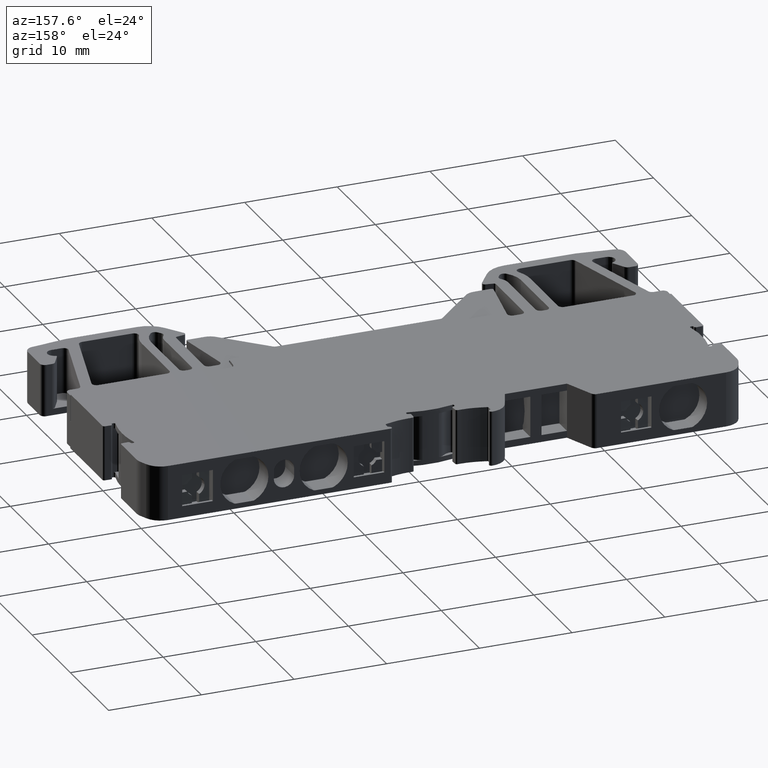
[diagram: clean part render]
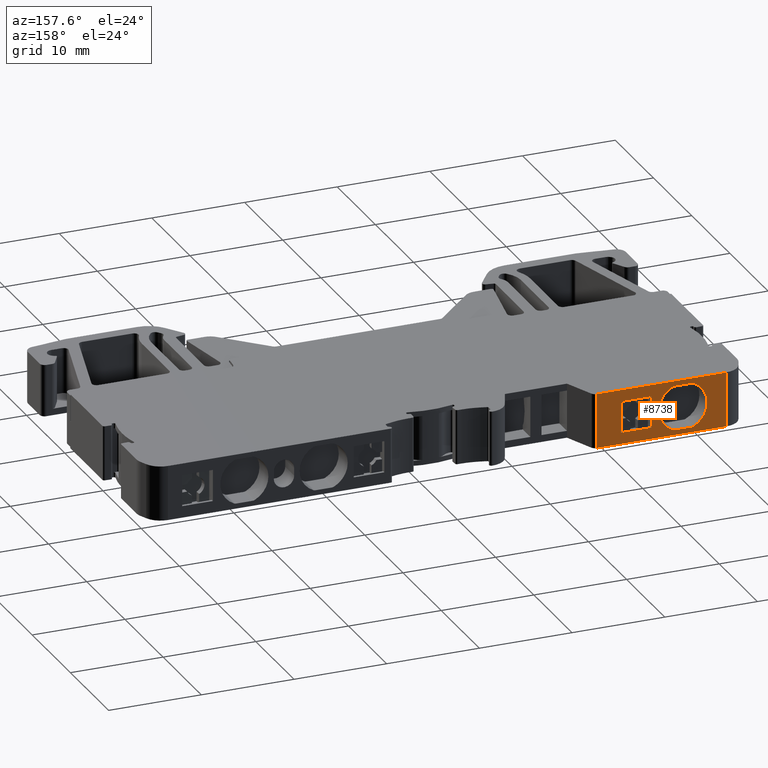
[diagram: same view with one face highlighted and labeled with its STEP entity id]
A machine part, auxiliary view. The second image highlights one B-rep face of the part: STEP entity #8738.
In plain terms, the highlighted planar face has unit normal (0, 1, -0).
Its self-contained STEP definition (entity closure, byte-faithful):
#155 = LINE ( 'NONE', #175, #8126 ) ;
#175 = CARTESIAN_POINT ( 'NONE',  ( -0.8245339505291715600, -88.61813747034541700, -0.05000000000000000300 ) ) ;
#177 = DIRECTION ( 'NONE',  ( -1.000000000000000000, -0.0000000000000000000, 0.0000000000000000000 ) ) ;
#256 = CARTESIAN_POINT ( 'NONE',  ( -18.59238649816447600, -88.61813747034540300, -68.12189434494692400 ) ) ;
#258 = DIRECTION ( 'NONE',  ( -0.0000000000000000000, -0.0000000000000000000, -1.000000000000000000 ) ) ;
#261 = LINE ( 'NONE', #256, #8166 ) ;
#273 = DIRECTION ( 'NONE',  ( 1.000000000000000000, -1.678780067382501300E-014, -0.0000000000000000000 ) ) ;
#302 = LINE ( 'NONE', #308, #8195 ) ;
#308 = CARTESIAN_POINT ( 'NONE',  ( -18.59238649816447600, -88.61813747034540300, 5.849999999999994300 ) ) ;
#316 = DIRECTION ( 'NONE',  ( -0.0000000000000000000, -0.0000000000000000000, -1.000000000000000000 ) ) ;
#329 = LINE ( 'NONE', #330, #8175 ) ;
#330 = CARTESIAN_POINT ( 'NONE',  ( -32.53234181493196800, -88.61813747034520400, -68.12189434494692400 ) ) ;
#2665 = AXIS2_PLACEMENT_3D ( 'NONE', #10981, #11051, #11047 ) ;
#2668 = AXIS2_PLACEMENT_3D ( 'NONE', #11016, #11017, #11011 ) ;
#2670 = CIRCLE ( 'NONE', #2668, 0.5000000000000000000 ) ;
#2672 = VECTOR ( 'NONE', #11000, 1000.000000000000000 ) ;
#2677 = CIRCLE ( 'NONE', #2665, 0.4999999999999995600 ) ;
#2691 = VECTOR ( 'NONE', #11029, 1000.000000000000000 ) ;
#2701 = VECTOR ( 'NONE', #11074, 1000.000000000000000 ) ;
#2703 = VECTOR ( 'NONE', #11078, 1000.000000000000000 ) ;
#2716 = CIRCLE ( 'NONE', #2739, 0.5000000000000000000 ) ;
#2727 = AXIS2_PLACEMENT_3D ( 'NONE', #11186, #11191, #11184 ) ;
#2739 = AXIS2_PLACEMENT_3D ( 'NONE', #11122, #11142, #11112 ) ;
#2749 = CIRCLE ( 'NONE', #2727, 0.4999999999999995600 ) ;
#3068 = ORIENTED_EDGE ( 'NONE', *, *, #4924, .T. ) ;
#3069 = ORIENTED_EDGE ( 'NONE', *, *, #4911, .T. ) ;
#3079 = ORIENTED_EDGE ( 'NONE', *, *, #9032, .F. ) ;
#3090 = ORIENTED_EDGE ( 'NONE', *, *, #4902, .T. ) ;
#3097 = ORIENTED_EDGE ( 'NONE', *, *, #4890, .T. ) ;
#3100 = ORIENTED_EDGE ( 'NONE', *, *, #8975, .T. ) ;
#3102 = ORIENTED_EDGE ( 'NONE', *, *, #4898, .T. ) ;
#3106 = ORIENTED_EDGE ( 'NONE', *, *, #4908, .T. ) ;
#3107 = ORIENTED_EDGE ( 'NONE', *, *, #9004, .T. ) ;
#3109 = ORIENTED_EDGE ( 'NONE', *, *, #9023, .T. ) ;
#4028 = EDGE_LOOP ( 'NONE', ( #3109, #3107, #3100, #3079 ) ) ;
#4036 = EDGE_LOOP ( 'NONE', ( #3106, #3097, #3068, #3090 ) ) ;
#4113 = EDGE_LOOP ( 'NONE', ( #4241, #4371, #4310, #4382, #4282, #4328, #3069, #3102 ) ) ;
#4241 = ORIENTED_EDGE ( 'NONE', *, *, #4950, .T. ) ;
#4282 = ORIENTED_EDGE ( 'NONE', *, *, #4956, .T. ) ;
#4310 = ORIENTED_EDGE ( 'NONE', *, *, #4910, .T. ) ;
#4328 = ORIENTED_EDGE ( 'NONE', *, *, #4934, .T. ) ;
#4371 = ORIENTED_EDGE ( 'NONE', *, *, #4927, .T. ) ;
#4382 = ORIENTED_EDGE ( 'NONE', *, *, #4877, .T. ) ;
#4877 = EDGE_CURVE ( 'NONE', #14652, #14660, #10271, .T. ) ;
#4890 = EDGE_CURVE ( 'NONE', #14658, #14645, #10939, .T. ) ;
#4898 = EDGE_CURVE ( 'NONE', #14716, #14672, #10454, .T. ) ;
#4902 = EDGE_CURVE ( 'NONE', #14656, #14639, #10980, .T. ) ;
#4908 = EDGE_CURVE ( 'NONE', #14639, #14658, #11012, .T. ) ;
#4910 = EDGE_CURVE ( 'NONE', #14621, #14652, #2670, .T. ) ;
#4911 = EDGE_CURVE ( 'NONE', #14646, #14716, #2677, .T. ) ;
#4924 = EDGE_CURVE ( 'NONE', #14645, #14656, #11044, .T. ) ;
#4927 = EDGE_CURVE ( 'NONE', #14654, #14621, #11036, .T. ) ;
#4934 = EDGE_CURVE ( 'NONE', #14642, #14646, #11101, .T. ) ;
#4950 = EDGE_CURVE ( 'NONE', #14672, #14654, #2716, .T. ) ;
#4956 = EDGE_CURVE ( 'NONE', #14660, #14642, #2749, .T. ) ;
#5254 = FACE_BOUND ( 'NONE', #4113, .T. ) ;
#5262 = DIRECTION ( 'NONE',  ( -1.000000000000000000, 1.678780067382501300E-014, 0.0000000000000000000 ) ) ;
#5266 = DIRECTION ( 'NONE',  ( 1.678780067382501300E-014, 1.000000000000000000, -0.0000000000000000000 ) ) ;
#5274 = FACE_OUTER_BOUND ( 'NONE', #4028, .T. ) ;
#5278 = CARTESIAN_POINT ( 'NONE',  ( -18.59238649816447600, -88.61813747034540300, -68.12189434494692400 ) ) ;
#5285 = PLANE ( 'NONE',  #9723 ) ;
#5288 = FACE_BOUND ( 'NONE', #4036, .T. ) ;
#5907 = CARTESIAN_POINT ( 'NONE',  ( -24.49311391319507100, -88.61813747034538800, 1.200000000000001500 ) ) ;
#5910 = CARTESIAN_POINT ( 'NONE',  ( -26.78420562653968800, -88.61813747034540300, 0.5476189321961116900 ) ) ;
#5912 = CARTESIAN_POINT ( 'NONE',  ( -21.19191506188829200, -88.61813747034538800, 1.200000000000001100 ) ) ;
#5917 = CARTESIAN_POINT ( 'NONE',  ( -28.99897471215630400, -88.61813747034540300, 0.5476189321961166800 ) ) ;
#5935 = CARTESIAN_POINT ( 'NONE',  ( -26.78420562653969500, -88.61813747034540300, 5.252381067803889400 ) ) ;
#5936 = CARTESIAN_POINT ( 'NONE',  ( -28.78601610234537100, -88.61813747034531700, 0.5000000000000001100 ) ) ;
#5940 = CARTESIAN_POINT ( 'NONE',  ( -21.19191506188832000, -88.61813747034538800, 4.599999999999997900 ) ) ;
#5944 = CARTESIAN_POINT ( 'NONE',  ( -28.78601610234537100, -88.61813747034531700, 5.299999999999998900 ) ) ;
#5954 = CARTESIAN_POINT ( 'NONE',  ( -26.99716423635066700, -88.61813747034533200, 5.299999999999998900 ) ) ;
#5955 = CARTESIAN_POINT ( 'NONE',  ( -24.49311391319507100, -88.61813747034538800, 4.599999999999997900 ) ) ;
#5964 = CARTESIAN_POINT ( 'NONE',  ( -28.99897471215630400, -88.61813747034540300, 5.252381067803883100 ) ) ;
#5993 = CARTESIAN_POINT ( 'NONE',  ( -18.59238649816443000, -88.61813747034541700, -0.04999999999999449300 ) ) ;
#6402 = CARTESIAN_POINT ( 'NONE',  ( -32.53234181493196800, -88.61813747034530300, -0.04999999999999449300 ) ) ;
#6417 = CARTESIAN_POINT ( 'NONE',  ( -32.53234181493194700, -88.61813747034518900, 5.849999999999994300 ) ) ;
#6439 = CARTESIAN_POINT ( 'NONE',  ( -18.59238649816442300, -88.61813747034540300, 5.849999999999994300 ) ) ;
#6612 = CARTESIAN_POINT ( 'NONE',  ( -26.99716423635066700, -88.61813747034533200, 0.5000000000000001100 ) ) ;
#8126 = VECTOR ( 'NONE', #177, 1000.000000000000000 ) ;
#8166 = VECTOR ( 'NONE', #258, 1000.000000000000000 ) ;
#8175 = VECTOR ( 'NONE', #316, 1000.000000000000000 ) ;
#8195 = VECTOR ( 'NONE', #273, 1000.000000000000000 ) ;
#8738 = ADVANCED_FACE ( 'NONE', ( #5254, #5274, #5288 ), #5285, .T. ) ;
#8975 = EDGE_CURVE ( 'NONE', #14728, #13532, #155, .T. ) ;
#9004 = EDGE_CURVE ( 'NONE', #13550, #14728, #261, .T. ) ;
#9023 = EDGE_CURVE ( 'NONE', #13535, #13550, #302, .T. ) ;
#9032 = EDGE_CURVE ( 'NONE', #13535, #13532, #329, .T. ) ;
#9723 = AXIS2_PLACEMENT_3D ( 'NONE', #5278, #5266, #5262 ) ;
#10271 = CIRCLE ( 'NONE', #10286, 2.599999464194735000 ) ;
#10286 = AXIS2_PLACEMENT_3D ( 'NONE', #10919, #10920, #10926 ) ;
#10320 = VECTOR ( 'NONE', #10940, 1000.000000000000000 ) ;
#10321 = VECTOR ( 'NONE', #11005, 1000.000000000000000 ) ;
#10445 = AXIS2_PLACEMENT_3D ( 'NONE', #10993, #11006, #10986 ) ;
#10454 = CIRCLE ( 'NONE', #10445, 2.599999464194735000 ) ;
#10919 = CARTESIAN_POINT ( 'NONE',  ( -27.89159016934796800, -88.61813747034540300, 2.899999999999999900 ) ) ;
#10920 = DIRECTION ( 'NONE',  ( 0.0000000000000000000, -1.000000000000000000, 0.0000000000000000000 ) ) ;
#10926 = DIRECTION ( 'NONE',  ( 0.0000000000000000000, 0.0000000000000000000, -1.000000000000000000 ) ) ;
#10939 = LINE ( 'NONE', #10944, #10320 ) ;
#10940 = DIRECTION ( 'NONE',  ( -1.000000000000000000, 1.678780067382501300E-014, 0.0000000000000000000 ) ) ;
#10944 = CARTESIAN_POINT ( 'NONE',  ( -18.59238649816447600, -88.61813747034540300, 4.599999999999992500 ) ) ;
#10980 = LINE ( 'NONE', #11008, #10321 ) ;
#10981 = CARTESIAN_POINT ( 'NONE',  ( -28.78601610234537100, -88.61813747034540300, 4.799999999999999800 ) ) ;
#10985 = CARTESIAN_POINT ( 'NONE',  ( -21.19191506090207300, -88.61813747034536000, -68.12189434494692400 ) ) ;
#10986 = DIRECTION ( 'NONE',  ( 0.0000000000000000000, 0.0000000000000000000, -1.000000000000000000 ) ) ;
#10993 = CARTESIAN_POINT ( 'NONE',  ( -27.89159016934796800, -88.61813747034540300, 2.899999999999999900 ) ) ;
#11000 = DIRECTION ( 'NONE',  ( 0.0000000000000000000, 0.0000000000000000000, 1.000000000000000000 ) ) ;
#11005 = DIRECTION ( 'NONE',  ( 1.000000000000000000, -1.678780067382501300E-014, -0.0000000000000000000 ) ) ;
#11006 = DIRECTION ( 'NONE',  ( 0.0000000000000000000, -1.000000000000000000, 0.0000000000000000000 ) ) ;
#11008 = CARTESIAN_POINT ( 'NONE',  ( -18.59238649816447600, -88.61813747034540300, 1.200000000000006600 ) ) ;
#11011 = DIRECTION ( 'NONE',  ( 0.0000000000000000000, 0.0000000000000000000, -1.000000000000000000 ) ) ;
#11012 = LINE ( 'NONE', #10985, #2672 ) ;
#11016 = CARTESIAN_POINT ( 'NONE',  ( -26.99716423635066700, -88.61813747034540300, 1.000000000000000000 ) ) ;
#11017 = DIRECTION ( 'NONE',  ( 0.0000000000000000000, -1.000000000000000000, 0.0000000000000000000 ) ) ;
#11029 = DIRECTION ( 'NONE',  ( -0.0000000000000000000, -0.0000000000000000000, -1.000000000000000000 ) ) ;
#11036 = LINE ( 'NONE', #11098, #2701 ) ;
#11038 = CARTESIAN_POINT ( 'NONE',  ( -24.49311391319507100, -88.61813747034530300, -68.12189434494692400 ) ) ;
#11044 = LINE ( 'NONE', #11038, #2691 ) ;
#11047 = DIRECTION ( 'NONE',  ( 0.0000000000000000000, 0.0000000000000000000, -1.000000000000000000 ) ) ;
#11051 = DIRECTION ( 'NONE',  ( 0.0000000000000000000, -1.000000000000000000, 0.0000000000000000000 ) ) ;
#11074 = DIRECTION ( 'NONE',  ( 1.000000000000000000, -1.678780067382501300E-014, -0.0000000000000000000 ) ) ;
#11078 = DIRECTION ( 'NONE',  ( -1.000000000000000000, 1.678780067382501300E-014, 0.0000000000000000000 ) ) ;
#11089 = CARTESIAN_POINT ( 'NONE',  ( -18.59238649816447600, -88.61813747034540300, 5.299999999999998900 ) ) ;
#11098 = CARTESIAN_POINT ( 'NONE',  ( -18.59238649816447600, -88.61813747034540300, 0.5000000000000004400 ) ) ;
#11101 = LINE ( 'NONE', #11089, #2703 ) ;
#11112 = DIRECTION ( 'NONE',  ( 0.0000000000000000000, 0.0000000000000000000, -1.000000000000000000 ) ) ;
#11122 = CARTESIAN_POINT ( 'NONE',  ( -28.78601610234537100, -88.61813747034540300, 1.000000000000000000 ) ) ;
#11142 = DIRECTION ( 'NONE',  ( 0.0000000000000000000, -1.000000000000000000, 0.0000000000000000000 ) ) ;
#11184 = DIRECTION ( 'NONE',  ( 0.0000000000000000000, 0.0000000000000000000, -1.000000000000000000 ) ) ;
#11186 = CARTESIAN_POINT ( 'NONE',  ( -26.99716423635066700, -88.61813747034540300, 4.799999999999999800 ) ) ;
#11191 = DIRECTION ( 'NONE',  ( 0.0000000000000000000, -1.000000000000000000, 0.0000000000000000000 ) ) ;
#13532 = VERTEX_POINT ( 'NONE', #6402 ) ;
#13535 = VERTEX_POINT ( 'NONE', #6417 ) ;
#13550 = VERTEX_POINT ( 'NONE', #6439 ) ;
#14621 = VERTEX_POINT ( 'NONE', #6612 ) ;
#14639 = VERTEX_POINT ( 'NONE', #5912 ) ;
#14642 = VERTEX_POINT ( 'NONE', #5954 ) ;
#14645 = VERTEX_POINT ( 'NONE', #5955 ) ;
#14646 = VERTEX_POINT ( 'NONE', #5944 ) ;
#14652 = VERTEX_POINT ( 'NONE', #5910 ) ;
#14654 = VERTEX_POINT ( 'NONE', #5936 ) ;
#14656 = VERTEX_POINT ( 'NONE', #5907 ) ;
#14658 = VERTEX_POINT ( 'NONE', #5940 ) ;
#14660 = VERTEX_POINT ( 'NONE', #5935 ) ;
#14672 = VERTEX_POINT ( 'NONE', #5917 ) ;
#14716 = VERTEX_POINT ( 'NONE', #5964 ) ;
#14728 = VERTEX_POINT ( 'NONE', #5993 ) ;